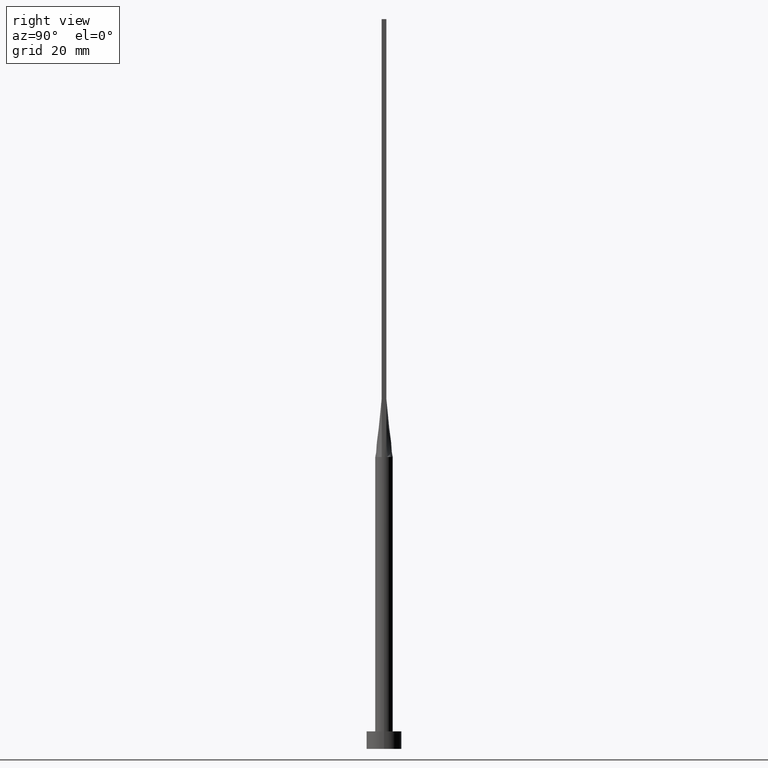
[diagram: clean part render]
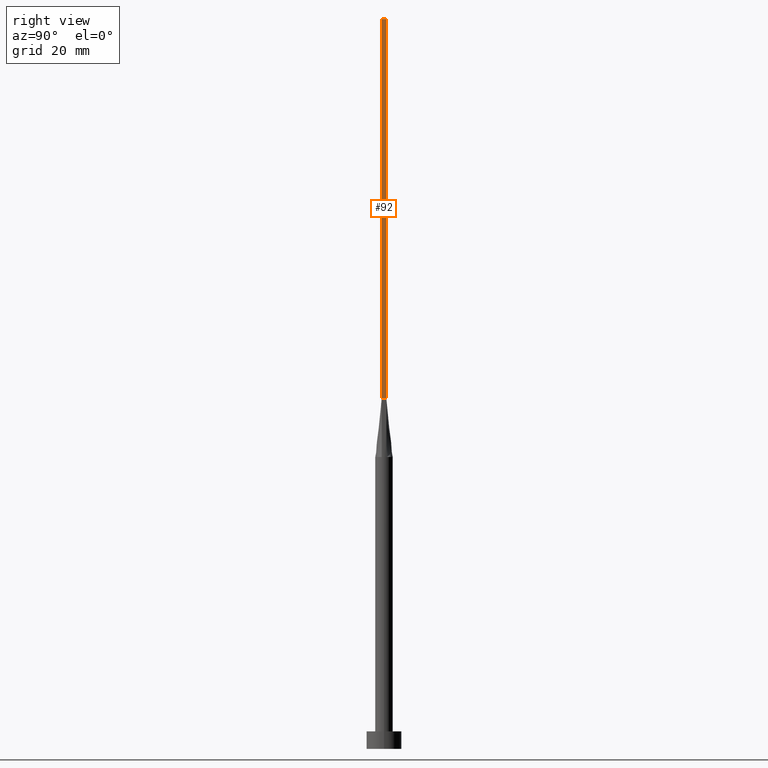
[diagram: same view with one face highlighted and labeled with its STEP entity id]
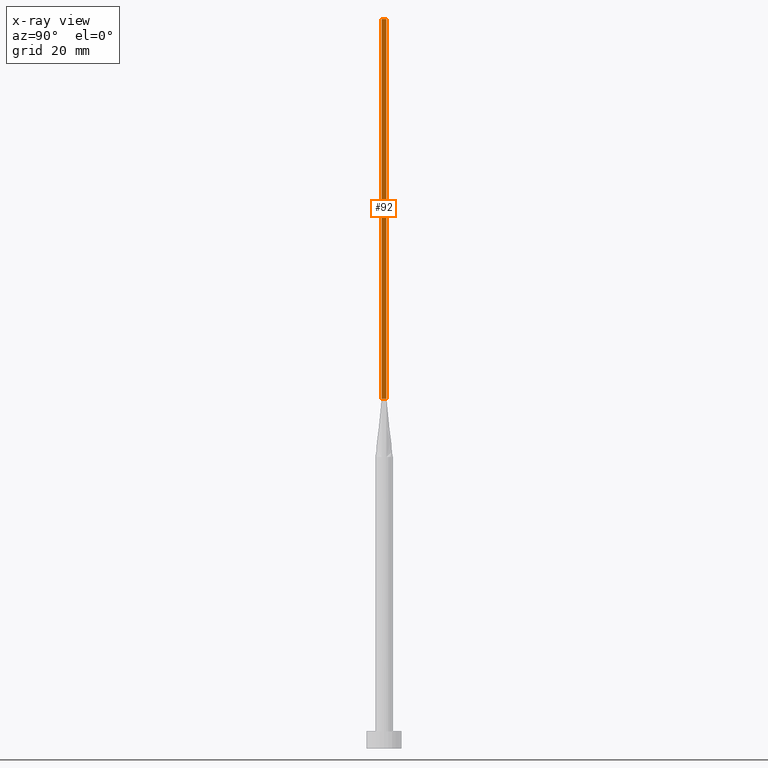
[diagram: x-ray of the same camera — body ghosted, the highlighted face saturated]
A machine part, right view. The second image highlights one B-rep face of the part: STEP entity #92.
The next image is the same camera in x-ray: the body ghosted, the highlighted face saturated — about 0% of this face is hidden behind the body in this view.
In plain terms, the highlighted planar face has unit normal (-1, -0, 0).
Its self-contained STEP definition (entity closure, byte-faithful):
#9 = DIRECTION ( 'NONE',  ( -1.000000000000000000, -2.710505431213761085E-16, 0.000000000000000000 ) ) ;
#10 = VERTEX_POINT ( 'NONE', #196 ) ;
#15 = LINE ( 'NONE', #93, #412 ) ;
#24 = EDGE_CURVE ( 'NONE', #387, #574, #79, .T. ) ;
#46 = LINE ( 'NONE', #542, #204 ) ;
#78 = ORIENTED_EDGE ( 'NONE', *, *, #105, .F. ) ;
#79 = LINE ( 'NONE', #272, #173 ) ;
#92 = ADVANCED_FACE ( 'NONE', ( #534 ), #331, .F. ) ;
#93 = CARTESIAN_POINT ( 'NONE',  ( 1.399999999999999689, 0.4000000000000002442, 60.00000000000000711 ) ) ;
#105 = EDGE_CURVE ( 'NONE', #387, #239, #46, .T. ) ;
#144 = DIRECTION ( 'NONE',  ( -2.710505431213761085E-16, 1.000000000000000000, -0.000000000000000000 ) ) ;
#173 = VECTOR ( 'NONE', #488, 1000.000000000000000 ) ;
#196 = CARTESIAN_POINT ( 'NONE',  ( 1.399999999999999689, 0.4000000000000002442, 60.00000000000000711 ) ) ;
#199 = ORIENTED_EDGE ( 'NONE', *, *, #209, .T. ) ;
#204 = VECTOR ( 'NONE', #280, 1000.000000000000000 ) ;
#209 = EDGE_CURVE ( 'NONE', #574, #10, #15, .T. ) ;
#239 = VERTEX_POINT ( 'NONE', #307 ) ;
#246 = DIRECTION ( 'NONE',  ( 2.710505431213761085E-16, -1.000000000000000000, 0.000000000000000000 ) ) ;
#261 = EDGE_CURVE ( 'NONE', #239, #10, #303, .T. ) ;
#265 = EDGE_LOOP ( 'NONE', ( #199, #290, #78, #366 ) ) ;
#271 = AXIS2_PLACEMENT_3D ( 'NONE', #275, #9, #246 ) ;
#272 = CARTESIAN_POINT ( 'NONE',  ( 1.399999999999999911, -0.3999999999999998002, 125.0000000000000000 ) ) ;
#275 = CARTESIAN_POINT ( 'NONE',  ( 1.399999999999999911, -0.3999999999999998002, 125.0000000000000000 ) ) ;
#280 = DIRECTION ( 'NONE',  ( -2.710505431213761085E-16, 1.000000000000000000, 0.000000000000000000 ) ) ;
#290 = ORIENTED_EDGE ( 'NONE', *, *, #261, .F. ) ;
#295 = DIRECTION ( 'NONE',  ( -0.000000000000000000, -0.000000000000000000, -1.000000000000000000 ) ) ;
#303 = LINE ( 'NONE', #431, #372 ) ;
#307 = CARTESIAN_POINT ( 'NONE',  ( 1.399999999999999689, 0.4000000000000002442, 125.0000000000000000 ) ) ;
#331 = PLANE ( 'NONE',  #271 ) ;
#366 = ORIENTED_EDGE ( 'NONE', *, *, #24, .T. ) ;
#372 = VECTOR ( 'NONE', #295, 1000.000000000000000 ) ;
#387 = VERTEX_POINT ( 'NONE', #579 ) ;
#412 = VECTOR ( 'NONE', #144, 1000.000000000000000 ) ;
#431 = CARTESIAN_POINT ( 'NONE',  ( 1.399999999999999689, 0.4000000000000002442, 125.0000000000000000 ) ) ;
#440 = CARTESIAN_POINT ( 'NONE',  ( 1.399999999999999911, -0.3999999999999998002, 60.00000000000000711 ) ) ;
#488 = DIRECTION ( 'NONE',  ( -0.000000000000000000, -0.000000000000000000, -1.000000000000000000 ) ) ;
#534 = FACE_OUTER_BOUND ( 'NONE', #265, .T. ) ;
#542 = CARTESIAN_POINT ( 'NONE',  ( 1.399999999999999911, -0.3999999999999998002, 125.0000000000000000 ) ) ;
#574 = VERTEX_POINT ( 'NONE', #440 ) ;
#579 = CARTESIAN_POINT ( 'NONE',  ( 1.399999999999999911, -0.3999999999999998002, 125.0000000000000000 ) ) ;